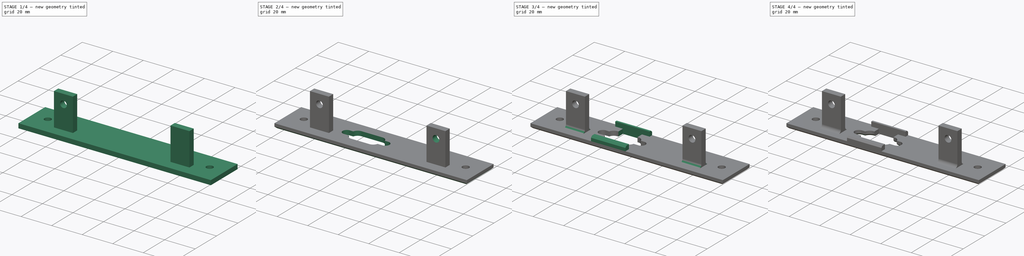
[diagram: build sequence overview — one tinted view per stage of 4, left to right]
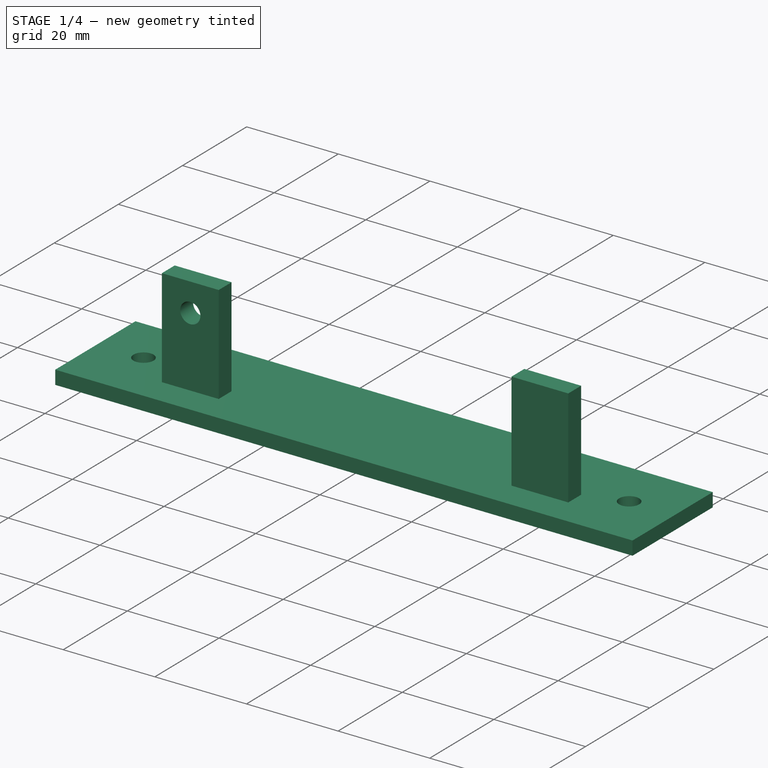
[diagram: stage 1 of 4 — iso view after this stage's code; geometry added in this stage tinted green]
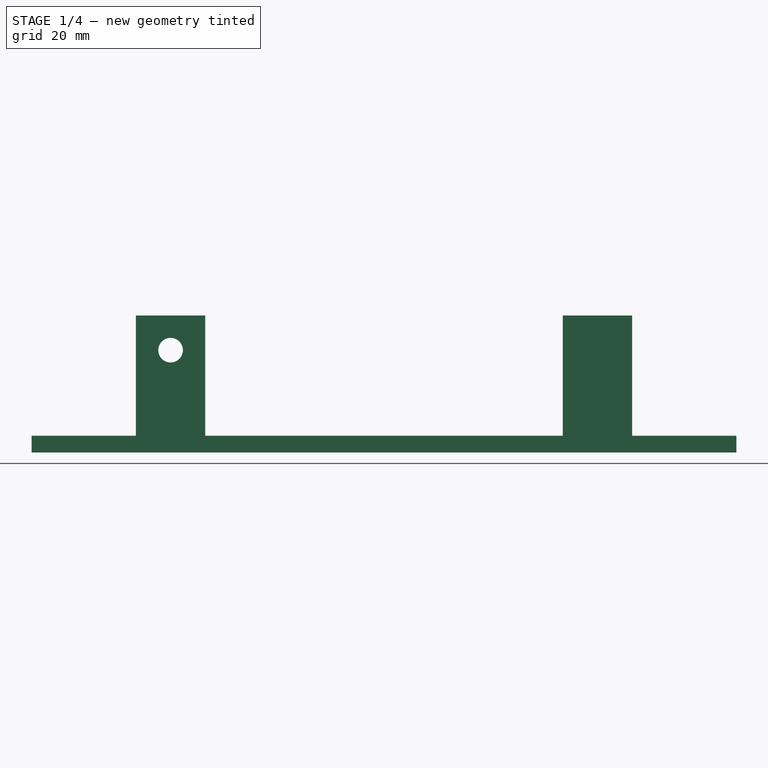
[diagram: stage 1 of 4 — front view after this stage's code; geometry added in this stage tinted green]
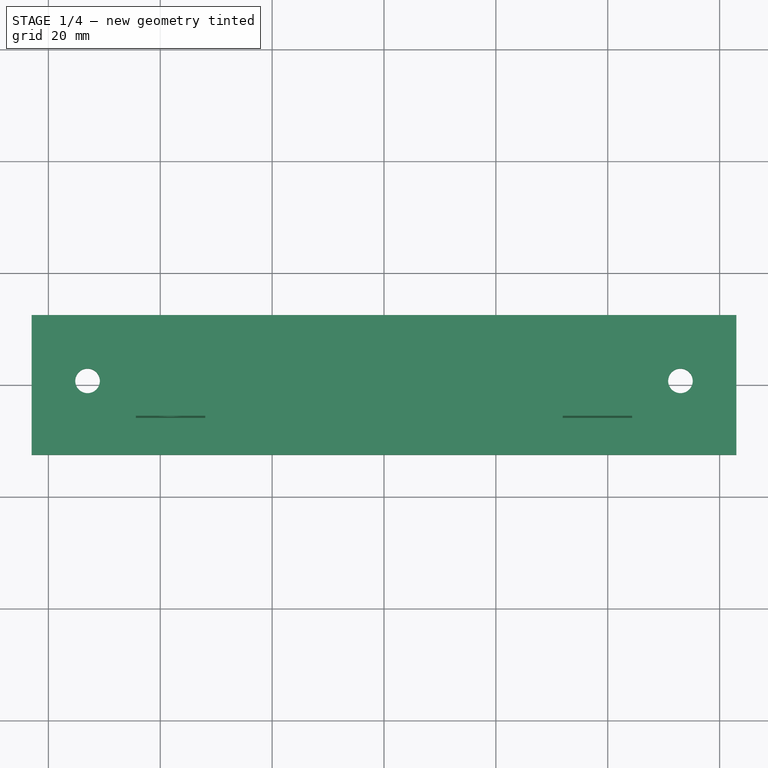
[diagram: stage 1 of 4 — top view after this stage's code; geometry added in this stage tinted green]
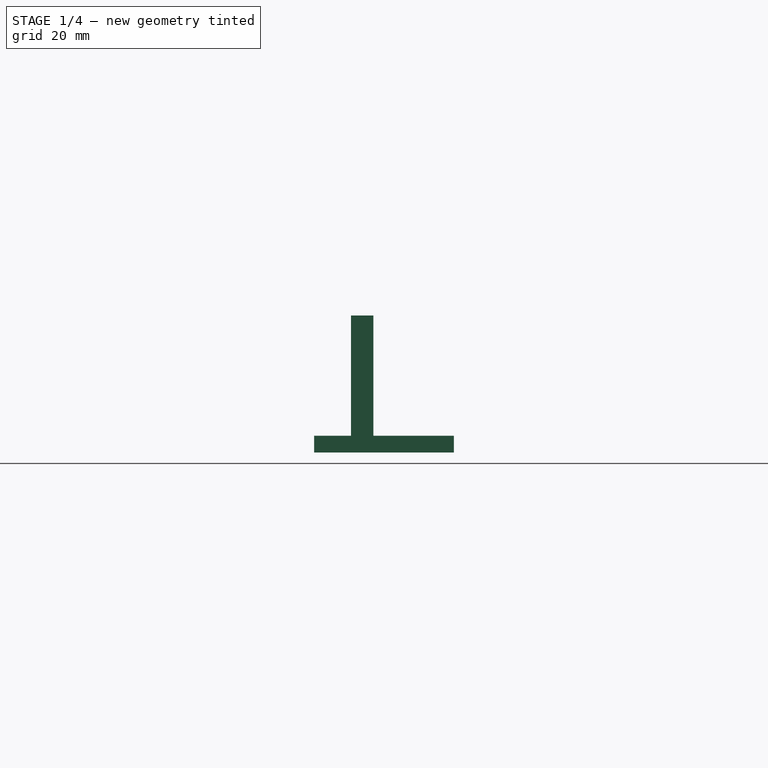
[diagram: stage 1 of 4 — right view after this stage's code; geometry added in this stage tinted green]
FCSTD DOCUMENT  (FreeCAD 0.15R4671 (Git))
Label: Serial Card
License: All rights reserved
LicenseURL: http://en.wikipedia.org/wiki/All_rights_reserved
objects: Sketcher::SketchObject×6, PartDesign::Pad×3, PartDesign::Pocket×3, PartDesign::Chamfer×3, PartDesign::Mirrored×1, Part::Part2DObjectPython×1, Part::Extrusion×1, PartDesign::Fillet×1, Part::Cut×1
note: 26 computed .brp shape members not serialized (recipe doc carries the construction recipe); baked Part::Feature solids carry a one-line shape summary decoded from their .brp

FEATURE [Sketcher::SketchObject] Sketch  label="Faceplate"
  sketch-geometry (6):
    g0: LineSegment StartX=-63 StartY=12.5 StartZ=0 EndX=63 EndY=12.5 EndZ=0
    g1: LineSegment StartX=63 StartY=12.5 StartZ=0 EndX=63 EndY=-12.5 EndZ=0
    g2: LineSegment StartX=63 StartY=-12.5 StartZ=0 EndX=-63 EndY=-12.5 EndZ=0
    g3: LineSegment StartX=-63 StartY=-12.5 StartZ=0 EndX=-63 EndY=12.5 EndZ=0
    g4: Circle CenterX=-53 CenterY=0.726 CenterZ=0 NormalX=0 NormalY=0 NormalZ=1 Radius=2.2
    g5: Circle CenterX=53 CenterY=0.726 CenterZ=0 NormalX=0 NormalY=0 NormalZ=1 Radius=2.2
  constraints (17):
    c: Coincident(g0,g1)
    c: Coincident(g1,g2)
    c: Coincident(g2,g3)
    c: Coincident(g3,g0)
    c: Horizontal(g0)
    c: Horizontal(g2)
    c: Vertical(g1)
    c: Vertical(g3)
    c: Distance(g3) = 25
    c: Distance(g0) = 126
    c: Symmetric(g0,g0,g-2)
    c: Symmetric(g0,g2,g-1)
    c: Equal(g5,g4)
    c: Radius(g4) = 2.2
    c: Symmetric(g4,g5,g-2)
    c: DistanceY(g0,g4) = -11.774
    c: DistanceX(g4,g0) = -10
FEATURE [PartDesign::Pad] Pad  label="Make Plate"
  Length = 3
  Length2 = 100
  Sketch = -> Sketch
  Type = 0
FEATURE [Sketcher::SketchObject] Sketch001  label="PCB Tabs"
  ExternalGeometry = -> [Pad]
  Placement = pos=(0,0,3) rot=(0,0,1;0rad)
  Support = -> Pad [Face8]
  sketch-geometry (10):
    g0: LineSegment StartX=-44.354 StartY=-1.892 StartZ=0 EndX=-31.954 EndY=-1.892 EndZ=0
    g1: LineSegment StartX=-31.954 StartY=-1.892 StartZ=0 EndX=-31.954 EndY=-5.892 EndZ=0
    g2: LineSegment StartX=-31.954 StartY=-5.892 StartZ=0 EndX=-44.354 EndY=-5.892 EndZ=0
    g3: LineSegment StartX=-44.354 StartY=-5.892 StartZ=0 EndX=-44.354 EndY=-1.892 EndZ=0
    g4: LineSegment StartX=31.954 StartY=-1.892 StartZ=0 EndX=44.354 EndY=-1.892 EndZ=0
    g5: LineSegment StartX=44.354 StartY=-1.892 StartZ=0 EndX=44.354 EndY=-5.892 EndZ=0
    g6: LineSegment StartX=44.354 StartY=-5.892 StartZ=0 EndX=31.954 EndY=-5.892 EndZ=0
    g7: LineSegment StartX=31.954 StartY=-5.892 StartZ=0 EndX=31.954 EndY=-1.892 EndZ=0
    g8: LineSegment [constr] StartX=-38.154 StartY=-1.892 StartZ=0 EndX=-38.154 EndY=-5.892 EndZ=0
    g9: LineSegment [constr] StartX=38.154 StartY=-1.892 StartZ=0 EndX=38.154 EndY=-5.892 EndZ=0
  constraints (31):
    c: Coincident(g0,g1)
    c: Coincident(g1,g2)
    c: Coincident(g2,g3)
    c: Coincident(g3,g0)
    c: Horizontal(g0)
    c: Horizontal(g2)
    c: Vertical(g1)
    c: Vertical(g3)
    c: Distance(g0) = 12.4
    c: Distance(g1) = 4
    c: Coincident(g4,g5)
    c: Coincident(g5,g6)
    c: Coincident(g6,g7)
    c: Coincident(g7,g4)
    c: Horizontal(g4)
    c: Horizontal(g6)
    c: Vertical(g5)
    c: Vertical(g7)
    c: Equal(g4,g0)
    c: Equal(g7,g1)
    c: Symmetric(g0,g4,g-2)
    c: Vertical(g8)
    c: PointOnObject(g8,g0)
    c: PointOnObject(g8,g2)
    c: Symmetric(g0,g0,g8)
    c: Vertical(g9)
    c: PointOnObject(g9,g4)
    c: PointOnObject(g9,g6)
    c: Symmetric(g4,g4,g9)
    c: Distance(g9,g8) = 76.308
    c: DistanceY(g-3,g2) = -18.392
FEATURE [PartDesign::Pad] Pad001  label="Make Tabs"
  Length = 21.497
  Length2 = 100
  Sketch = -> Sketch001
  Type = 0
FEATURE [Sketcher::SketchObject] Sketch002  label="Holes for PCB Mounting"
  ExternalGeometry = -> [Pad001]
  Placement = pos=(0,-5.892,0) rot=(1,0,0;1.5708rad)
  Support = -> Pad001 [Face11]
  sketch-geometry (2):
    g0: Circle CenterX=-38.154 CenterY=18.297 CenterZ=0 NormalX=0 NormalY=0 NormalZ=1 Radius=2.2
    g1: LineSegment [constr] StartX=-38.154 StartY=24.497 StartZ=0 EndX=-38.154 EndY=20.497 EndZ=0
  constraints (6):
    c: Radius(g0) = 2.2
    c: Vertical(g1)
    c: Perpendicular(g1,g0) = 4.71239
    c: PointOnObject(g1,g-3)
    c: Symmetric(g-3,g-3,g1)
    c: DistanceY(g1,g1) = 4
FEATURE [PartDesign::Pocket] Pocket  label="Add Hole"
  Length = 5
  Sketch = -> Sketch002
  Type = 2
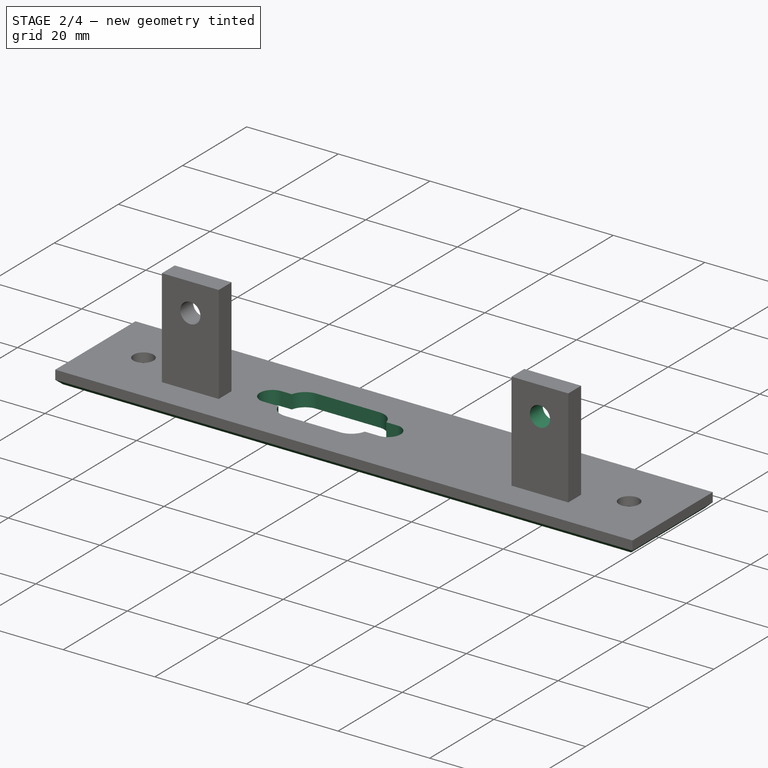
[diagram: stage 2 of 4 — iso view after this stage's code; geometry added in this stage tinted green]
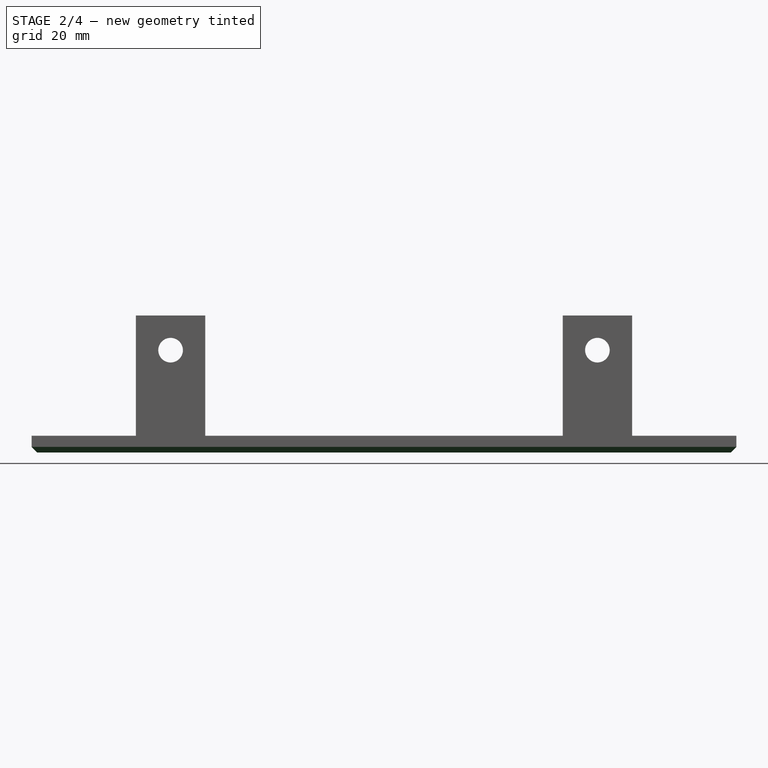
[diagram: stage 2 of 4 — front view after this stage's code; geometry added in this stage tinted green]
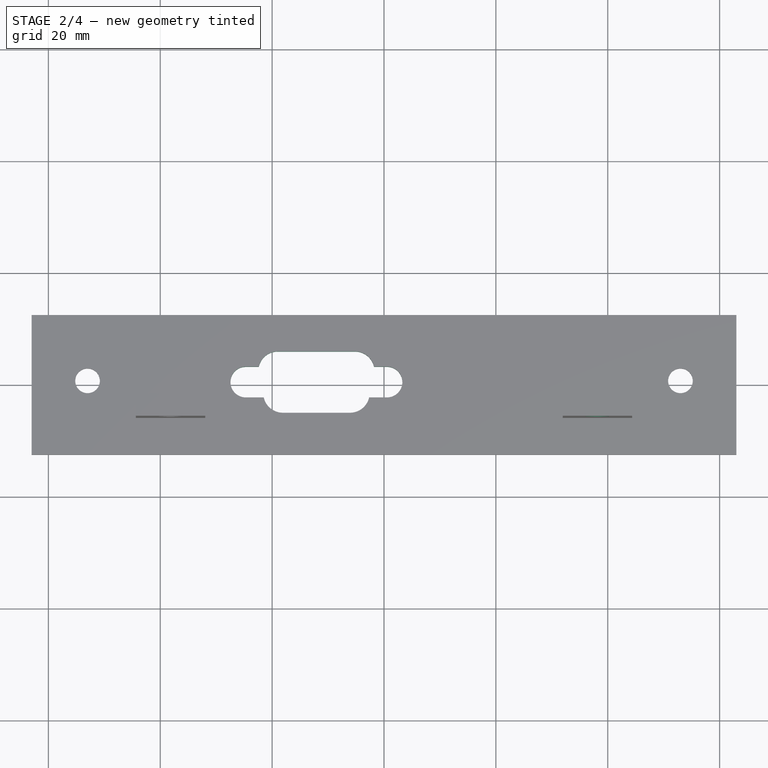
[diagram: stage 2 of 4 — top view after this stage's code; geometry added in this stage tinted green]
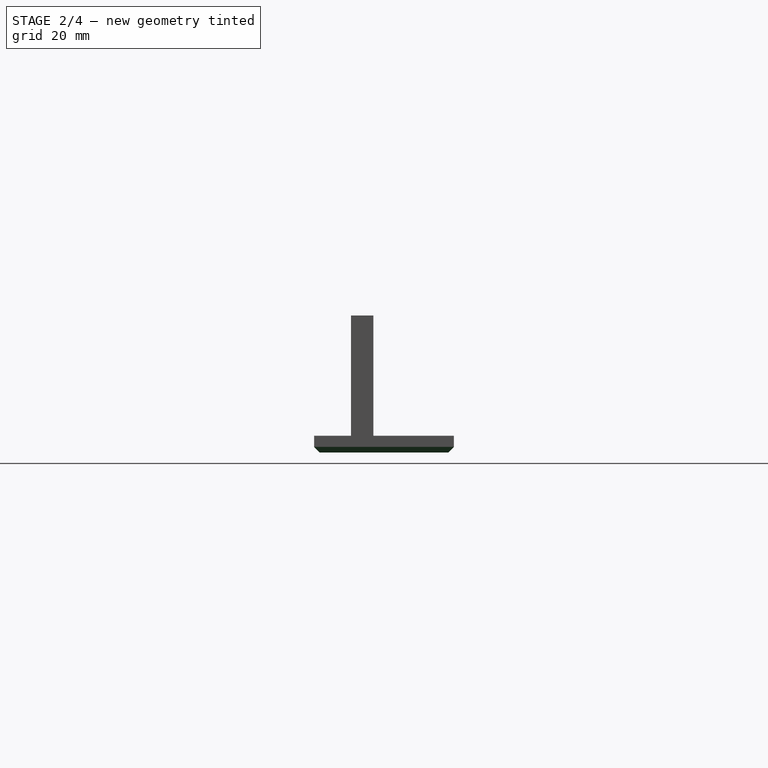
[diagram: stage 2 of 4 — right view after this stage's code; geometry added in this stage tinted green]
FEATURE [PartDesign::Mirrored] Mirrored  label="Add second hole too"
  MirrorPlane = -> Sketch002 [V_Axis]
  Originals = -> [Pocket]
FEATURE [PartDesign::Chamfer] Chamfer  label="Finish Viewing side"
  Base = -> Mirrored [Edge3,Edge9,Edge11,Edge6,Edge12,Edge13]
  Size = 1
FEATURE [PartDesign::Pocket] Pocket001
  Length = 5
  Sketch = -> Sketch003
  Type = 1
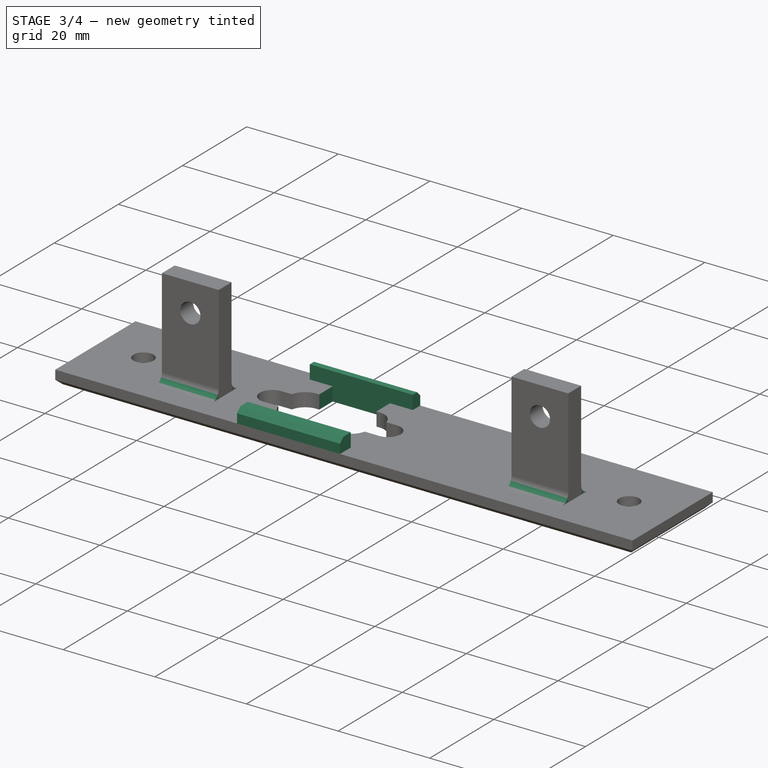
[diagram: stage 3 of 4 — iso view after this stage's code; geometry added in this stage tinted green]
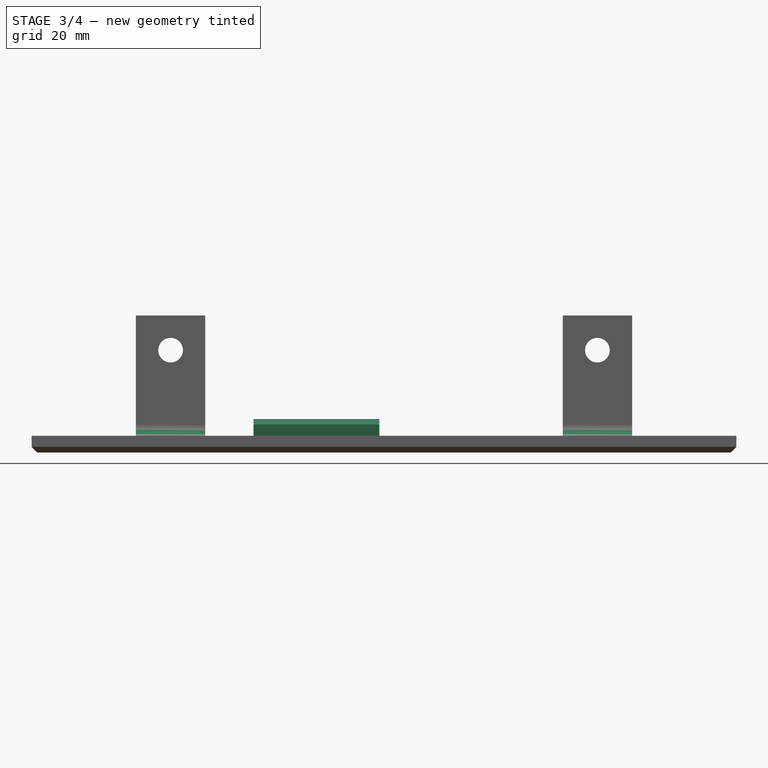
[diagram: stage 3 of 4 — front view after this stage's code; geometry added in this stage tinted green]
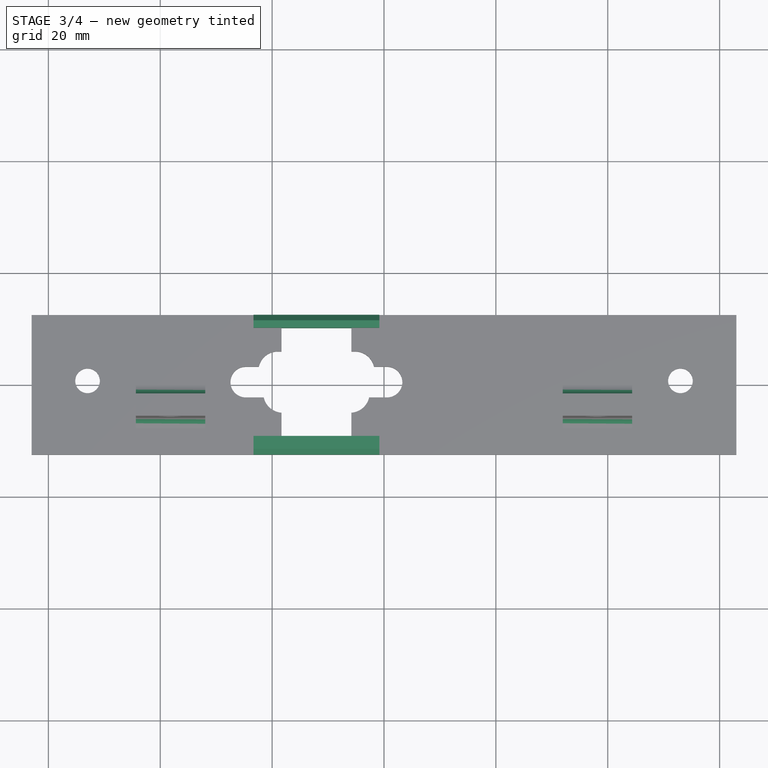
[diagram: stage 3 of 4 — top view after this stage's code; geometry added in this stage tinted green]
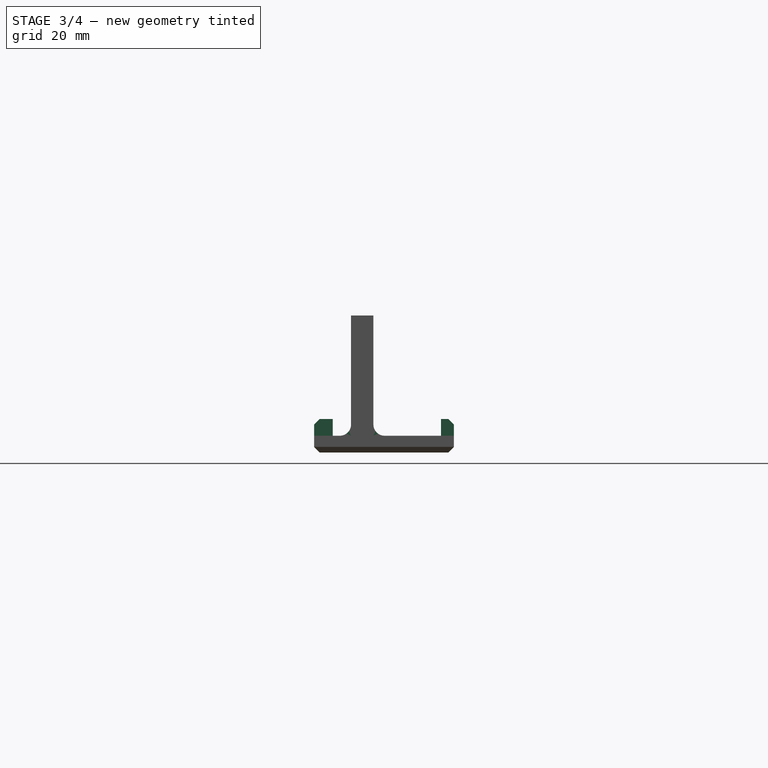
[diagram: stage 3 of 4 — right view after this stage's code; geometry added in this stage tinted green]
FEATURE [Sketcher::SketchObject] Sketch004  label="Temporary Bodge"
  ExternalGeometry = -> [Pocket001]
  Placement = pos=(0,0,0) rot=(1,0,0;3.14159rad)
  Support = -> Pocket001 [Face8]
  sketch-geometry (5):
    g0: LineSegment StartX=-18.3321 StartY=9.172 StartZ=0 EndX=-5.8321 EndY=9.172 EndZ=0
    g1: LineSegment StartX=-5.8321 StartY=9.172 StartZ=0 EndX=-5.8321 EndY=-10.188 EndZ=0
    g2: LineSegment StartX=-5.8321 StartY=-10.188 StartZ=0 EndX=-18.3321 EndY=-10.188 EndZ=0
    g3: LineSegment StartX=-18.3321 StartY=-10.188 StartZ=0 EndX=-18.3321 EndY=9.172 EndZ=0
    g4: LineSegment [constr] StartX=-12.0821 StartY=4.972 StartZ=0 EndX=-12.0821 EndY=-5.988 EndZ=0
  constraints (16):
    c: Coincident(g0,g1)
    c: Coincident(g1,g2)
    c: Coincident(g2,g3)
    c: Coincident(g3,g0)
    c: Horizontal(g0)
    c: Horizontal(g2)
    c: Vertical(g1)
    c: Vertical(g3)
    c: DistanceY(g1,g-4) = 4.2
    c: DistanceY(g-3,g0) = 4.2
    c: DistanceX(g0) = 12.5
    c: Perpendicular(g4,g-3) = 1.5708
    c: PointOnObject(g4,g-4)
    c: Symmetric(g-3,g-3,g4)
    c: Symmetric(g-3,g-3,g4)
    c: Symmetric(g0,g0,g4)
FEATURE [PartDesign::Pocket] Pocket002
  Length = 5
  Sketch = -> Sketch004
  Type = 1
FEATURE [Sketcher::SketchObject] Sketch005
  ExternalGeometry = -> [Pocket002]
  Placement = pos=(0,0,3) rot=(0,0,1;0rad)
  Support = -> Pocket002 [Face4]
  sketch-geometry (8):
    g0: LineSegment StartX=-23.3321 StartY=12.5 StartZ=0 EndX=-0.8321 EndY=12.5 EndZ=0
    g1: LineSegment StartX=-0.8321 StartY=12.5 StartZ=0 EndX=-0.8321 EndY=10.188 EndZ=0
    g2: LineSegment StartX=-0.8321 StartY=10.188 StartZ=0 EndX=-23.3321 EndY=10.188 EndZ=0
    g3: LineSegment StartX=-23.3321 StartY=10.188 StartZ=0 EndX=-23.3321 EndY=12.5 EndZ=0
    g4: LineSegment StartX=-23.3321 StartY=-9.172 StartZ=0 EndX=-0.8321 EndY=-9.172 EndZ=0
    g5: LineSegment StartX=-0.8321 StartY=-9.172 StartZ=0 EndX=-0.8321 EndY=-12.5 EndZ=0
    g6: LineSegment StartX=-0.8321 StartY=-12.5 StartZ=0 EndX=-23.3321 EndY=-12.5 EndZ=0
    g7: LineSegment StartX=-23.3321 StartY=-12.5 StartZ=0 EndX=-23.3321 EndY=-9.172 EndZ=0
  constraints (24):
    c: Coincident(g0,g1)
    c: Coincident(g1,g2)
    c: Coincident(g2,g3)
    c: Coincident(g3,g0)
    c: Horizontal(g0)
    c: Horizontal(g2)
    c: Vertical(g1)
    c: Vertical(g3)
    c: PointOnObject(g0,g-3)
    c: PointOnObject(g-4,g2)
    c: DistanceX(g2,g-4) = 5
    c: DistanceX(g-4,g1) = 5
    c: Coincident(g4,g5)
    c: Coincident(g5,g6)
    c: Coincident(g6,g7)
    c: Coincident(g7,g4)
    c: Horizontal(g4)
    c: Horizontal(g6)
    c: Vertical(g5)
    c: Vertical(g7)
    c: PointOnObject(g-6,g4)
    c: PointOnObject(g6,g-5)
    c: Equal(g4,g2)
    c: DistanceX(g4,g-6) = 5
FEATURE [PartDesign::Pad] Pad002
  Length = 3
  Length2 = 100
  Sketch = -> Sketch005
  Type = 0
FEATURE [PartDesign::Chamfer] Chamfer001
  Base = -> Pad002 [Edge57,Edge114]
  Size = 1
FEATURE [PartDesign::Fillet] Fillet
  Base = -> Chamfer001 [Edge59,Edge62,Edge39,Edge36]
  Radius = 2
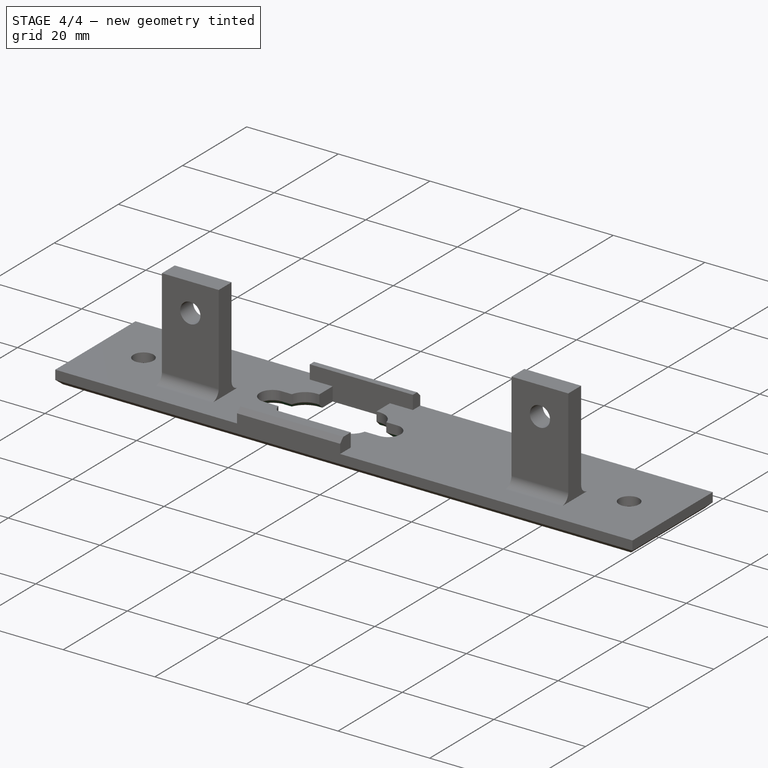
[diagram: stage 4 of 4 — iso view after this stage's code; geometry added in this stage tinted green]
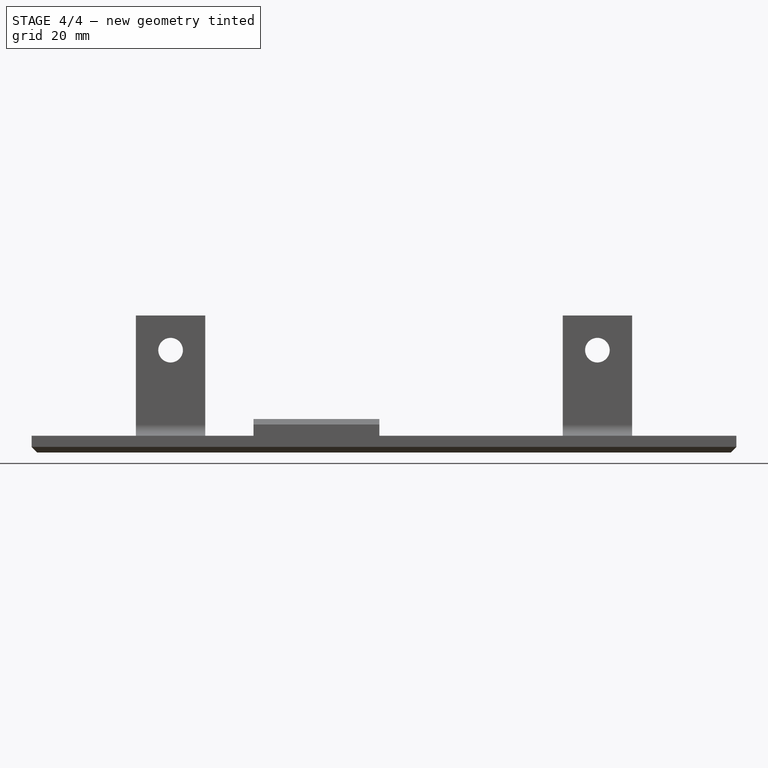
[diagram: stage 4 of 4 — front view after this stage's code; geometry added in this stage tinted green]
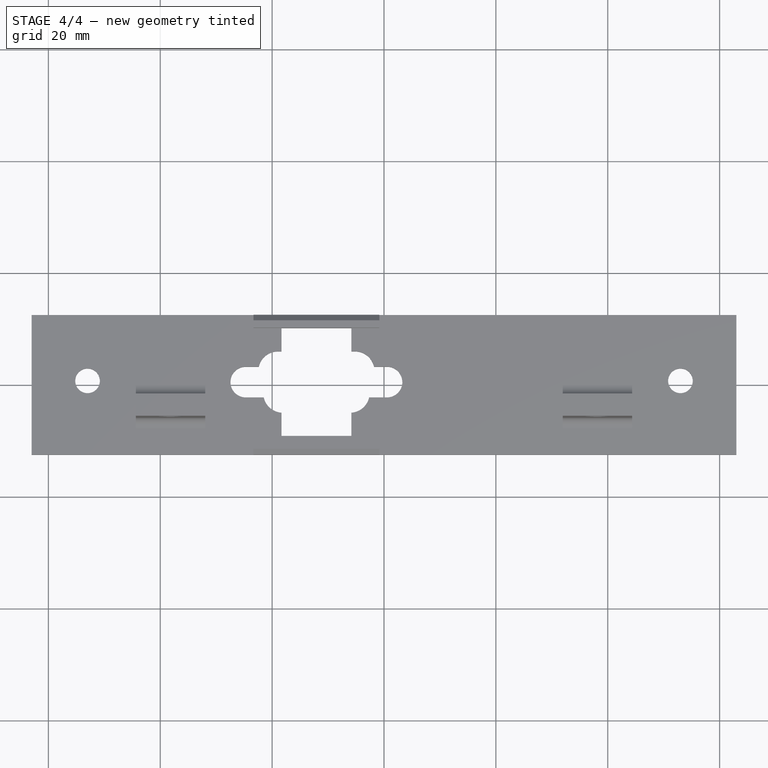
[diagram: stage 4 of 4 — top view after this stage's code; geometry added in this stage tinted green]
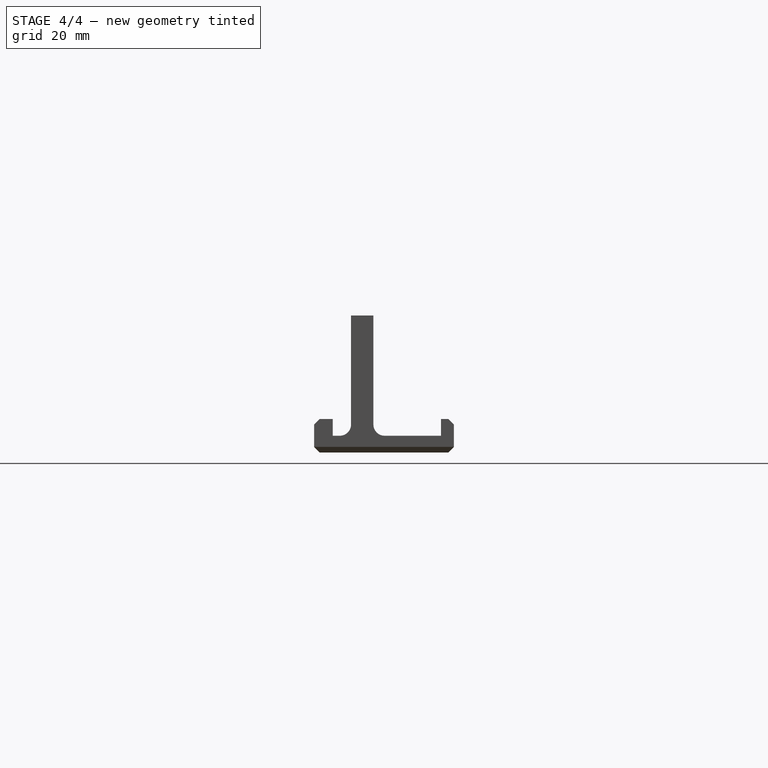
[diagram: stage 4 of 4 — right view after this stage's code; geometry added in this stage tinted green]
FEATURE [Sketcher::SketchObject] Sketch003  label="Socket Hole"
  ExternalGeometry = -> [Chamfer]
  Placement = pos=(0,0,0) rot=(1,0,0;3.14159rad)
  Support = -> Chamfer [Face8]
  sketch-geometry (19):
    g0: LineSegment [constr] StartX=-24.7071 StartY=-0.508 StartZ=0 EndX=0.5429 EndY=-0.508 EndZ=0
    g1: LineSegment [constr] StartX=-12.0821 StartY=4.972 StartZ=0 EndX=-12.0821 EndY=-5.988 EndZ=0
    g2: GeomPoint [constr] X=-12.0821 Y=-0.508 Z=0
    g3: ArcOfCircle CenterX=-18.0871 CenterY=1.472 CenterZ=0 NormalX=0 NormalY=0 NormalZ=1 Radius=3.5 StartAngle=1.5708 EndAngle=2.92292
    g4: ArcOfCircle CenterX=-6.0771 CenterY=1.472 CenterZ=0 NormalX=0 NormalY=0 NormalZ=1 Radius=3.5 StartAngle=0.218669 EndAngle=1.5708
    g5: ArcOfCircle CenterX=-18.9671 CenterY=-2.488 CenterZ=0 NormalX=0 NormalY=0 NormalZ=1 Radius=3.5 StartAngle=3.36026 EndAngle=4.71239
    g6: ArcOfCircle CenterX=-5.1971 CenterY=-2.488 CenterZ=0 NormalX=0 NormalY=0 NormalZ=1 Radius=3.5 StartAngle=4.71239 EndAngle=6.06452
    g7: LineSegment StartX=-18.0871 StartY=4.972 StartZ=0 EndX=-6.0771 EndY=4.972 EndZ=0
    g8: LineSegment [constr] StartX=-2.66045 StartY=2.23126 StartZ=0 EndX=-1.78045 EndY=-1.72874 EndZ=0
    g9: LineSegment [constr] StartX=-21.5038 StartY=2.23126 StartZ=0 EndX=-22.3838 EndY=-1.72874 EndZ=0
    g10: LineSegment StartX=-18.9671 StartY=-5.988 StartZ=0 EndX=-5.1971 EndY=-5.988 EndZ=0
    g11: ArcOfCircle CenterX=-24.7071 CenterY=-0.508 CenterZ=0 NormalX=0 NormalY=0 NormalZ=1 Radius=2.73926 StartAngle=1.5708 EndAngle=4.71239
    g12: LineSegment StartX=-24.7071 StartY=-3.24726 StartZ=0 EndX=-22.3838 EndY=-3.24726 EndZ=0
    g13: LineSegment StartX=-24.7071 StartY=2.23126 StartZ=0 EndX=-21.5038 EndY=2.23126 EndZ=0
    g14: ArcOfCircle [constr] CenterX=-18.9671 CenterY=-2.488 CenterZ=0 NormalX=0 NormalY=0 NormalZ=1 Radius=3.5 StartAngle=2.92292 EndAngle=3.36026
    g15: ArcOfCircle CenterX=0.5429 CenterY=-0.508 CenterZ=0 NormalX=0 NormalY=0 NormalZ=1 Radius=2.73926 StartAngle=4.71239 EndAngle=7.85398
    g16: LineSegment StartX=0.5429 StartY=2.23126 StartZ=0 EndX=-2.66045 EndY=2.23126 EndZ=0
    g17: LineSegment StartX=0.5429 StartY=-3.24726 StartZ=0 EndX=-1.78045 EndY=-3.24726 EndZ=0
    g18: ArcOfCircle [constr] CenterX=-5.1971 CenterY=-2.488 CenterZ=0 NormalX=0 NormalY=0 NormalZ=1 Radius=3.5 StartAngle=6.06452 EndAngle=6.50185
  constraints (47):
    c: Horizontal(g0)
    c: Symmetric(g0,g0,g1)
    c: Symmetric(g1,g1,g0)
    c: Distance(g0) = 25.25
    c: PointOnObject(g2,g1)
    c: PointOnObject(g2,g0)  'Socket Center'
    c: Symmetric(g4,g3,g1)
    c: Symmetric(g5,g6,g1)
    c: Distance(g3,g4) = 12.01
    c: Tangent(g7,g3) = 1.5708
    c: Tangent(g7,g4) = 1.5708
    c: Equal(g3,g4)
    c: Equal(g4,g6)
    c: Equal(g6,g5)
    c: Radius(g6) = 3.5
    c: Distance(g5,g6) = 13.77
    c: Tangent(g8,g4) = 1.5708
    c: Tangent(g3,g9) = -1.5708
    c: DistanceY(g3,g5) = -3.96
    c: Tangent(g10,g6) = -1.5708
    c: Tangent(g10,g5) = -1.5708
    c: PointOnObject(g1,g7)
    c: PointOnObject(g1,g10)
    c: Tangent(g12,g11) = -1.5708
    c: Tangent(g13,g11) = 1.5708
    c: Coincident(g11,g0)
    c: Horizontal(g12)
    c: Horizontal(g13)
    c: PointOnObject(g13,g9)
    c: Coincident(g13,g3)
    c: Coincident(g5,g12)
    c: Tangent(g14,g5) = -1.5708
    c: Tangent(g14,g9) = -1.5708
    c: Equal(g5,g14)
    c: Equal(g15,g11)
    c: Tangent(g16,g15) = -1.5708
    c: Horizontal(g16)
    c: Coincident(g4,g16)
    c: Coincident(g15,g0)
    c: Horizontal(g17)
    c: Tangent(g17,g15) = 1.5708
    c: Coincident(g6,g17)
    c: Coincident(g18,g6)
    c: Coincident(g18,g6)
    c: Tangent(g18,g8) = 1.5708
    c: DistanceX(g2) = -12.0821
    c: DistanceY(g2,g-3) = -11.992
FEATURE [Part::Part2DObjectPython] ShapeString  # Draft 2D object (typed FeaturePython)
  FontFile = C:/Spare Fonts/impact.ttf
  Placement = pos=(46.5,-3,0) rot=(0,1,0;3.14159rad)
  Size = 7
  String = Serial Card
  Tracking = 6
FEATURE [Part::Extrusion] Extrude
  Base = -> ShapeString
  Dir = (0,0,1)
  Solid = false
FEATURE [PartDesign::Chamfer] Chamfer002
  Base = -> Fillet [Edge67,Edge65,Edge63,Edge59,Edge126,Edge125,Edge131]
  Size = 1
FEATURE [Part::Cut] Cut
  Base = -> Chamfer002
  Tool = -> Extrude
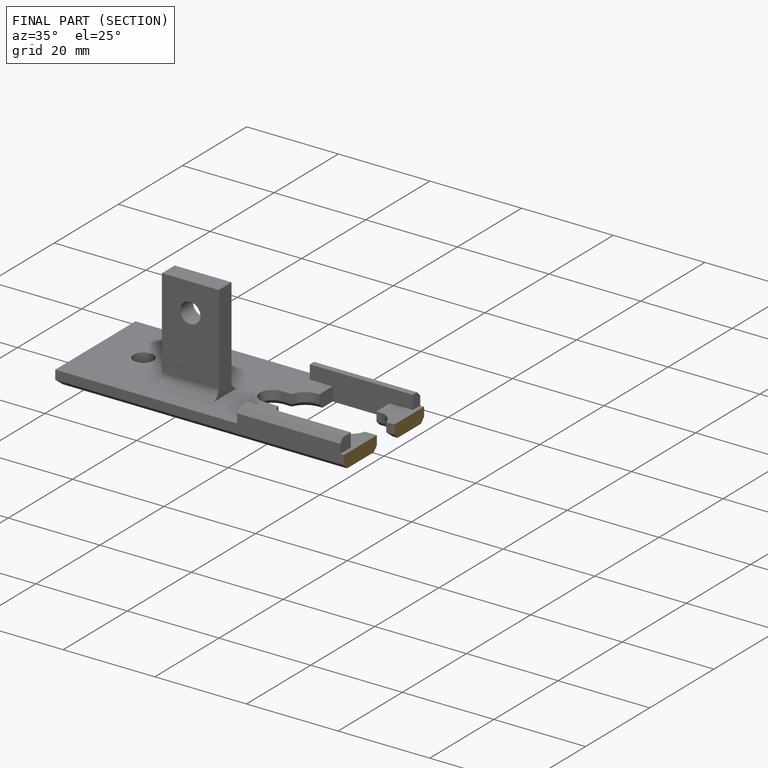
[diagram: finished part — half-section view (interior)]
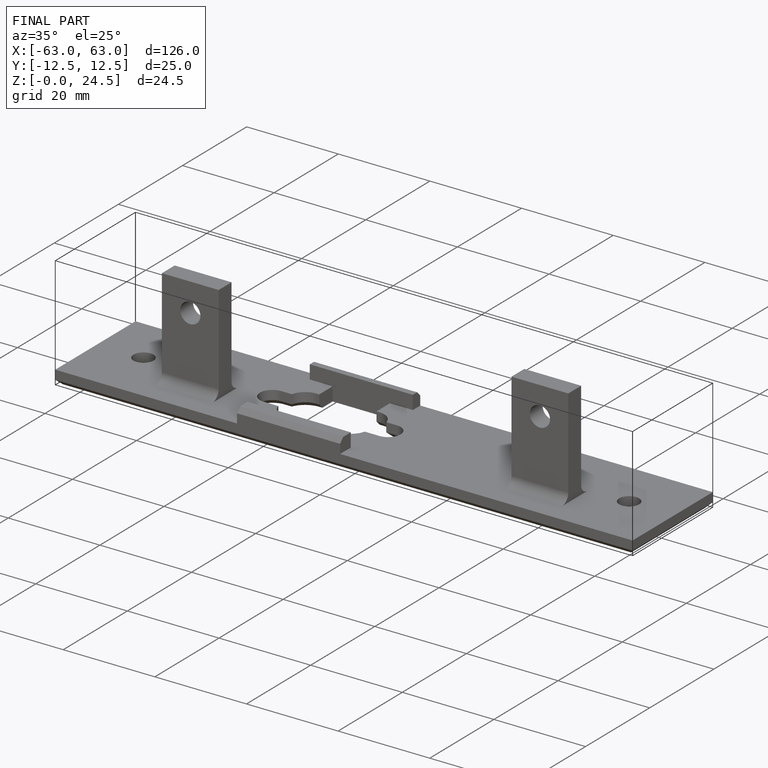
[diagram: finished part — iso view with bounding-box wireframe]
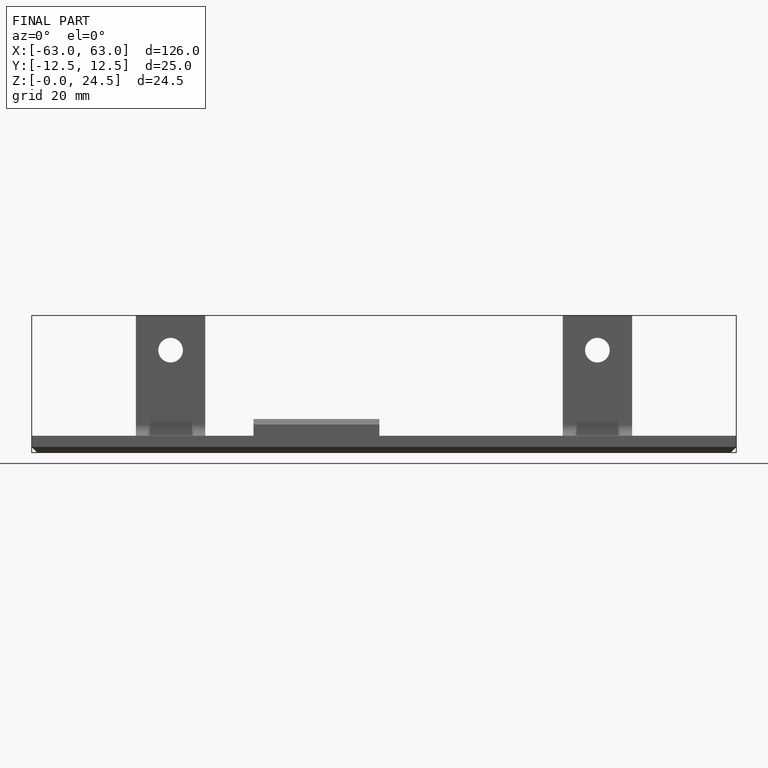
[diagram: finished part — front view with bounding-box wireframe]
